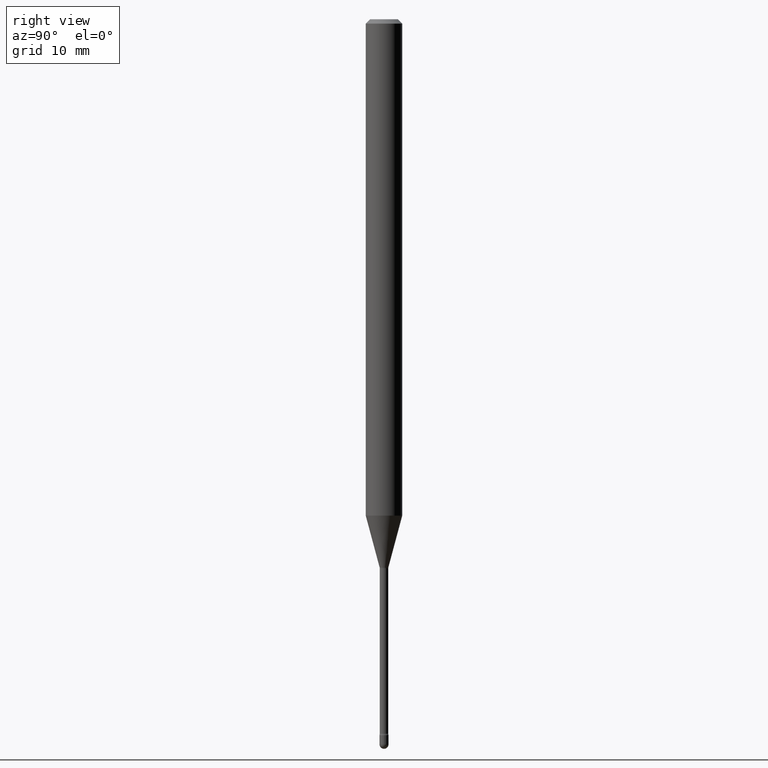
[diagram: clean part render]
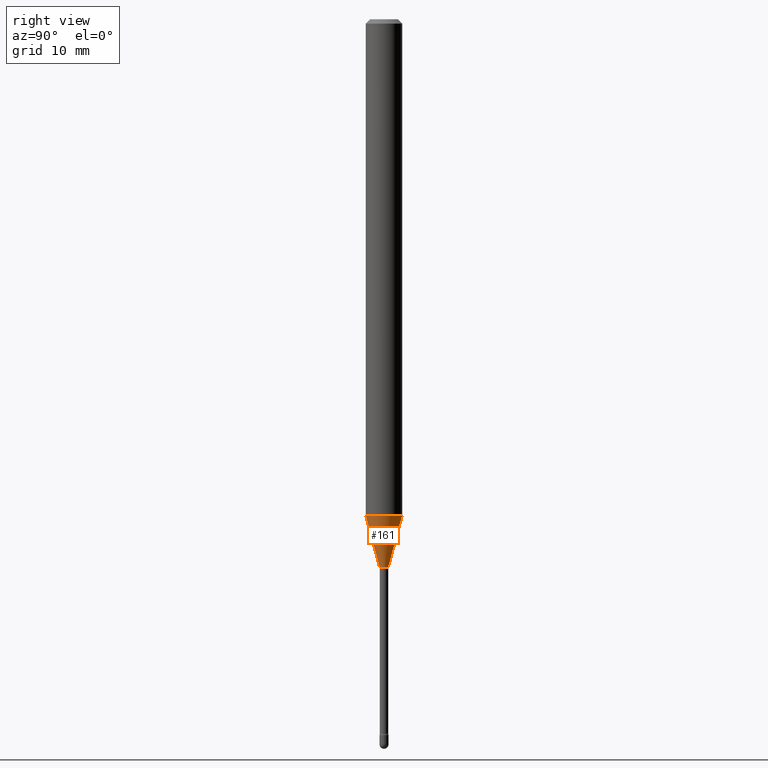
[diagram: same view with one face highlighted and labeled with its STEP entity id]
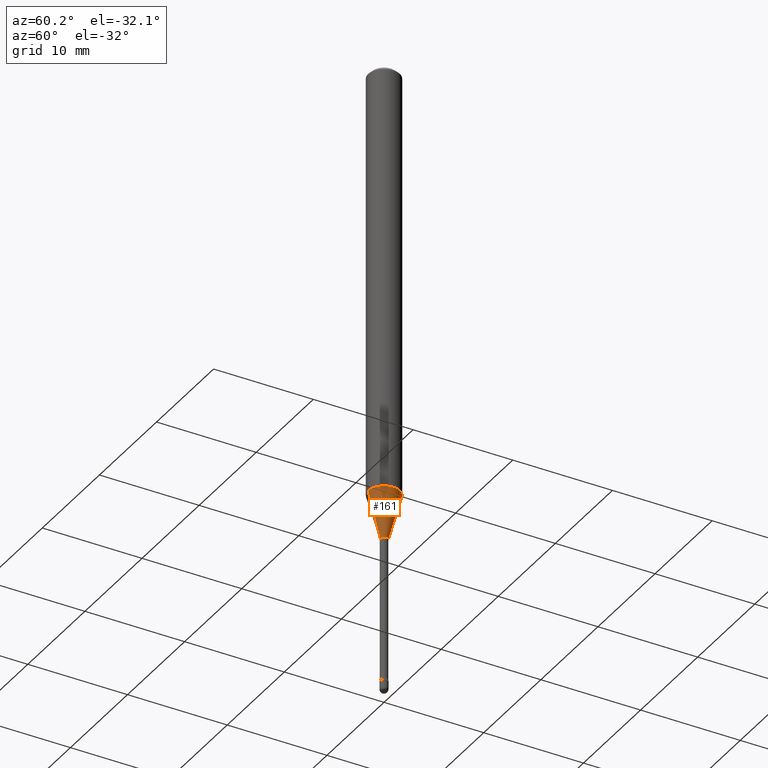
[diagram: same view with one face highlighted and labeled with its STEP entity id]
A machine part, right view. The second image highlights one B-rep face of the part: STEP entity #161.
A second angle (auxiliary view) of the same face is appended — the face is thin or edge-on in the first view.
In plain terms, the highlighted conical surface has half-angle 15 deg.
Its self-contained STEP definition (entity closure, byte-faithful):
#8 = CARTESIAN_POINT ( 'NONE',  ( 1.070156415442400836E-16, 0.01506111260565742502, -1.878092501787273161 ) ) ;
#29 = DIRECTION ( 'NONE',  ( -6.982962677686265922E-15, -1.000000000000000000, 4.370956789862821150E-15 ) ) ;
#44 = DIRECTION ( 'NONE',  ( -2.445460439162084166E-29, 3.491493320896377968E-15, 1.000000000000000000 ) ) ;
#63 = CARTESIAN_POINT ( 'NONE',  ( 4.592800914207722546E-29, -6.557347426015833165E-15, -1.878092501787273161 ) ) ;
#64 = ORIENTED_EDGE ( 'NONE', *, *, #207, .T. ) ;
#69 = DIRECTION ( 'NONE',  ( 1.839019923739597554E-15, 0.2588190451025245697, 0.9659258262890670910 ) ) ;
#78 = DIRECTION ( 'NONE',  ( -2.445460439162084166E-29, 3.491493320896377968E-15, 1.000000000000000000 ) ) ;
#86 = VERTEX_POINT ( 'NONE', #412 ) ;
#101 = CIRCLE ( 'NONE', #490, 0.01506111260566398054 ) ;
#102 = DIRECTION ( 'NONE',  ( -6.982962677686265922E-15, -1.000000000000000000, 0.000000000000000000 ) ) ;
#131 = CARTESIAN_POINT ( 'NONE',  ( 4.592800914207722546E-29, -6.557347426015833165E-15, -1.878092501787273161 ) ) ;
#136 = CARTESIAN_POINT ( 'NONE',  ( -1.051711872097357942E-16, -0.01506111260567053779, -1.878092501787273161 ) ) ;
#148 = EDGE_CURVE ( 'NONE', #86, #463, #535, .T. ) ;
#161 = ADVANCED_FACE ( 'NONE', ( #247 ), #401, .T. ) ;
#193 = AXIS2_PLACEMENT_3D ( 'NONE', #418, #78, #29 ) ;
#207 = EDGE_CURVE ( 'NONE', #369, #86, #101, .T. ) ;
#236 = EDGE_CURVE ( 'NONE', #369, #477, #388, .T. ) ;
#247 = FACE_OUTER_BOUND ( 'NONE', #294, .T. ) ;
#283 = CARTESIAN_POINT ( 'NONE',  ( -1.051711872097357942E-16, -0.01506111260567053779, -1.878092501787273161 ) ) ;
#294 = EDGE_LOOP ( 'NONE', ( #64, #499, #439, #552 ) ) ;
#300 = DIRECTION ( 'NONE',  ( -6.982962677686265922E-15, -1.000000000000000000, 0.000000000000000000 ) ) ;
#308 = DIRECTION ( 'NONE',  ( -2.445460439162084166E-29, 3.491493320896377968E-15, 1.000000000000000000 ) ) ;
#339 = VECTOR ( 'NONE', #69, 39.37007874015748854 ) ;
#350 = CARTESIAN_POINT ( 'NONE',  ( 4.440892098501039328E-16, 0.06249999999999404643, -1.701048163777073130 ) ) ;
#369 = VERTEX_POINT ( 'NONE', #283 ) ;
#388 = LINE ( 'NONE', #136, #459 ) ;
#400 = CIRCLE ( 'NONE', #193, 0.06250000000000000000 ) ;
#401 = CONICAL_SURFACE ( 'NONE', #566, 0.01506111260566398054, 0.2617993877991499074 ) ;
#412 = CARTESIAN_POINT ( 'NONE',  ( 2.755524256971723102E-16, 0.01506111260565742675, -1.878092501787273161 ) ) ;
#417 = EDGE_CURVE ( 'NONE', #477, #463, #400, .T. ) ;
#418 = CARTESIAN_POINT ( 'NONE',  ( 4.159845989626137311E-29, -5.939198302350697681E-15, -1.701048163777072908 ) ) ;
#433 = CARTESIAN_POINT ( 'NONE',  ( -4.364351673553500570E-16, -0.06250000000000595357, -1.701048163777072464 ) ) ;
#439 = ORIENTED_EDGE ( 'NONE', *, *, #417, .F. ) ;
#459 = VECTOR ( 'NONE', #476, 39.37007874015748143 ) ;
#463 = VERTEX_POINT ( 'NONE', #350 ) ;
#476 = DIRECTION ( 'NONE',  ( -1.807323732225327773E-15, -0.2588190451025178529, 0.9659258262890690894 ) ) ;
#477 = VERTEX_POINT ( 'NONE', #433 ) ;
#490 = AXIS2_PLACEMENT_3D ( 'NONE', #131, #44, #300 ) ;
#499 = ORIENTED_EDGE ( 'NONE', *, *, #148, .T. ) ;
#535 = LINE ( 'NONE', #8, #339 ) ;
#552 = ORIENTED_EDGE ( 'NONE', *, *, #236, .F. ) ;
#566 = AXIS2_PLACEMENT_3D ( 'NONE', #63, #308, #102 ) ;